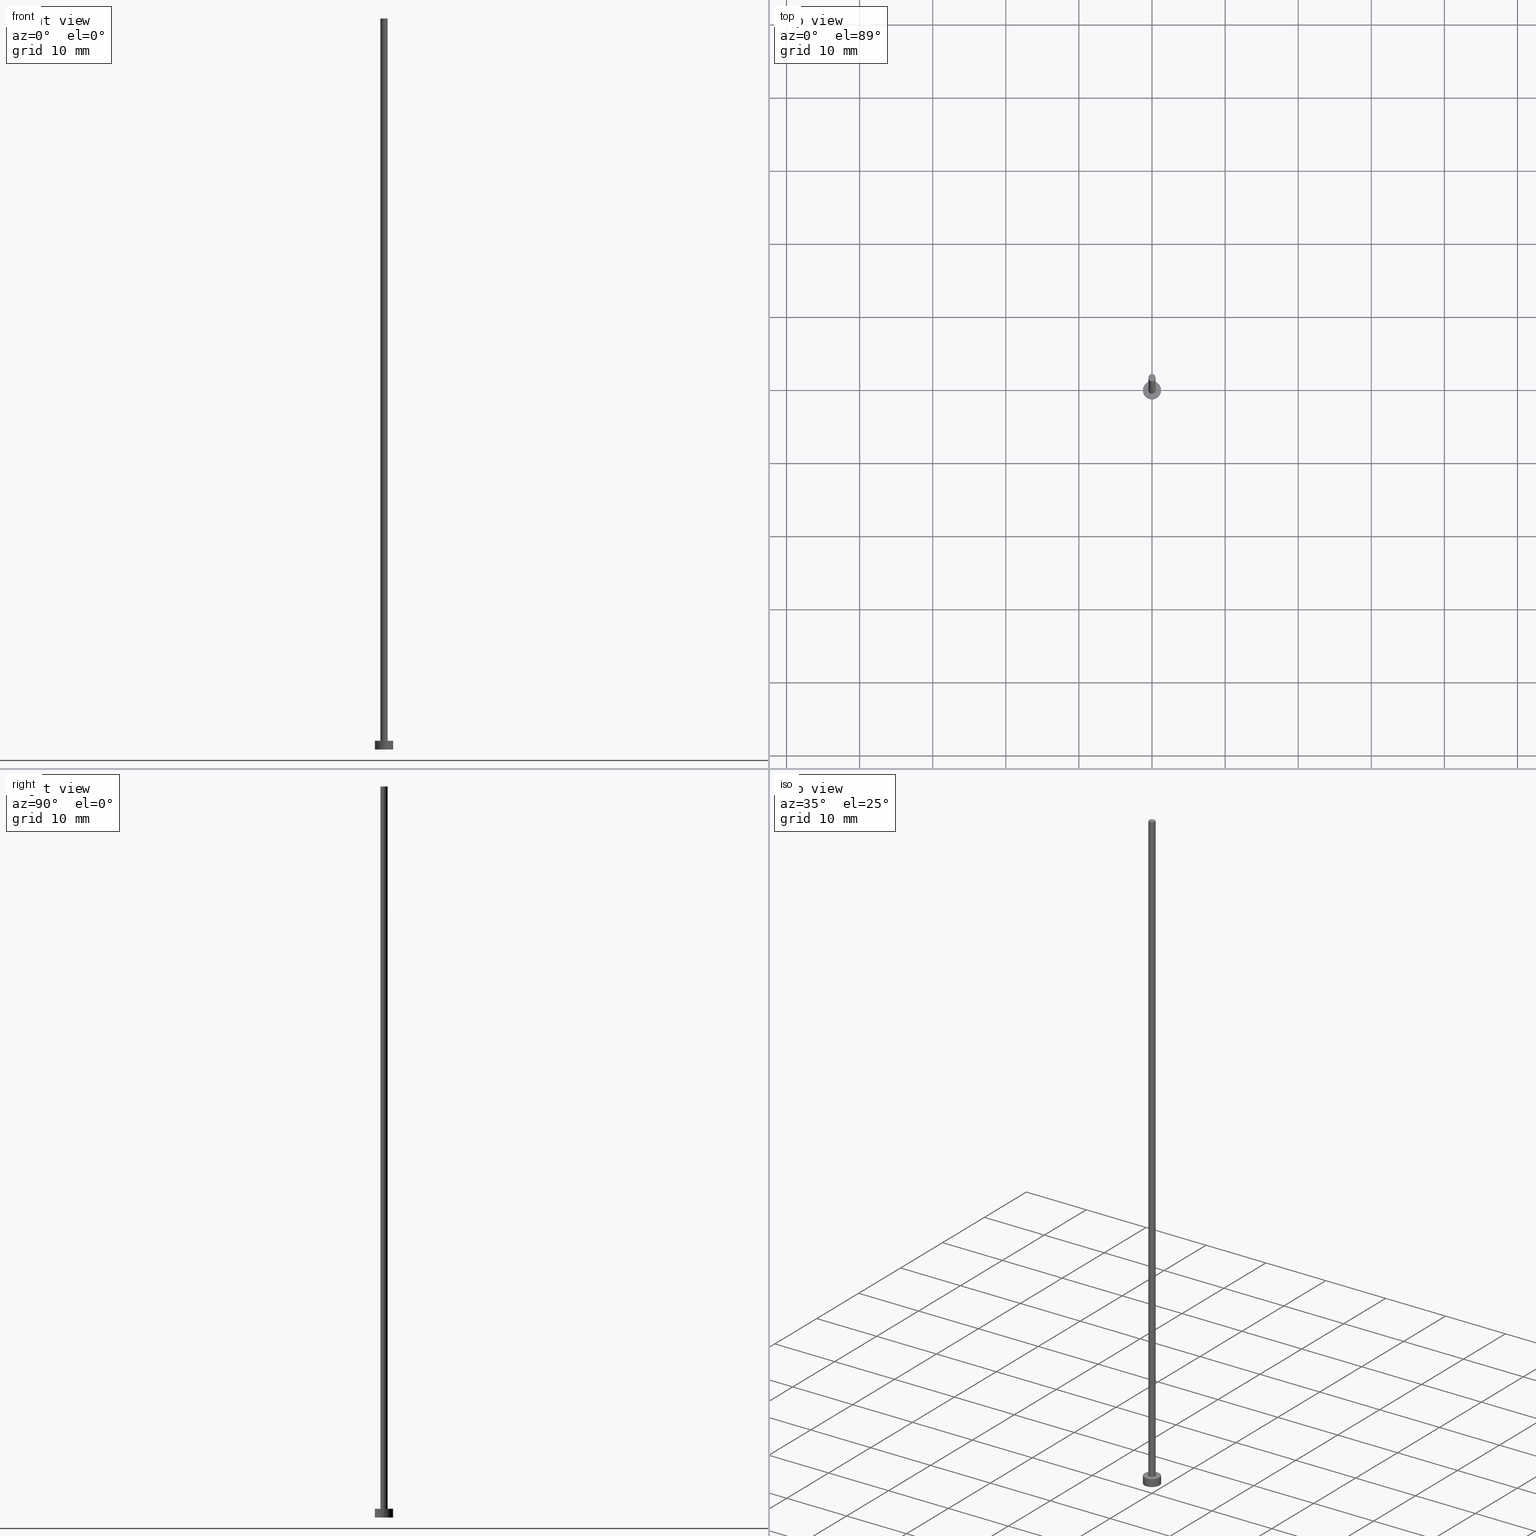
[diagram: canonical four-view strip — front | top / right | iso, engineering-drawing reading convention]
A machine part, canonical four-view strip (front | top / right | iso — engineering-drawing reading convention). The complete STEP part file that produces these views, byte-faithful:
ISO-10303-21;
HEADER;
FILE_DESCRIPTION (( 'STEP AP203' ),
    '1' );
FILE_NAME ('96ec.STEP',
    '2024-03-19T14:13:06',
    ( '' ),
    ( '' ),
    'SwSTEP 2.0',
    'SolidWorks 2019',
    '' );
FILE_SCHEMA (( 'CONFIG_CONTROL_DESIGN' ));
ENDSEC;

DATA;
#1 = VERTEX_POINT ( 'NONE', #132 ) ;
#2 = ADVANCED_FACE ( 'NONE', ( #233 ), #166, .F. ) ;
#3 = CARTESIAN_POINT ( 'NONE',  ( 0.000000000000000000, 0.000000000000000000, 100.0000000000000000 ) ) ;
#4 = ORIENTED_EDGE ( 'NONE', *, *, #98, .T. ) ;
#5 = ORIENTED_EDGE ( 'NONE', *, *, #40, .F. ) ;
#6 = APPROVAL_PERSON_ORGANIZATION ( #203, #76, #227 ) ;
#7 = COORDINATED_UNIVERSAL_TIME_OFFSET ( 1, 0, .AHEAD. ) ;
#8 = AXIS2_PLACEMENT_3D ( 'NONE', #77, #210, #229 ) ;
#9 = EDGE_LOOP ( 'NONE', ( #49, #85 ) ) ;
#10 = EDGE_CURVE ( 'NONE', #1, #31, #140, .T. ) ;
#11 = VERTEX_POINT ( 'NONE', #109 ) ;
#12 = ORIENTED_EDGE ( 'NONE', *, *, #34, .T. ) ;
#13 = DATE_AND_TIME ( #204, #208 ) ;
#14 = UNCERTAINTY_MEASURE_WITH_UNIT (LENGTH_MEASURE( 1.000000000000000082E-05 ), #192, 'distance_accuracy_value', 'NONE');
#15 = CC_DESIGN_APPROVAL ( #118, ( #218 ) ) ;
#16 = EDGE_CURVE ( 'NONE', #11, #26, #21, .T. ) ;
#17 = CIRCLE ( 'NONE', #113, 0.5000000000000000000 ) ;
#18 = CARTESIAN_POINT ( 'NONE',  ( 0.000000000000000000, 0.000000000000000000, 100.0000000000000000 ) ) ;
#19 = APPLICATION_CONTEXT ( 'configuration controlled 3d designs of mechanical parts and assemblies' ) ;
#20 = CARTESIAN_POINT ( 'NONE',  ( 0.000000000000000000, 0.000000000000000000, 0.000000000000000000 ) ) ;
#21 = LINE ( 'NONE', #175, #135 ) ;
#22 = CIRCLE ( 'NONE', #254, 1.250000000000000000 ) ;
#23 = CARTESIAN_POINT ( 'NONE',  ( -1.250000000000000000, 0.000000000000000000, 1.199999999999999956 ) ) ;
#24 = DIRECTION ( 'NONE',  ( -0.000000000000000000, -0.000000000000000000, -1.000000000000000000 ) ) ;
#25 = CARTESIAN_POINT ( 'NONE',  ( 0.000000000000000000, 0.000000000000000000, 100.0000000000000000 ) ) ;
#26 = VERTEX_POINT ( 'NONE', #81 ) ;
#27 = VECTOR ( 'NONE', #131, 1000.000000000000000 ) ;
#28 = ORIENTED_EDGE ( 'NONE', *, *, #70, .T. ) ;
#29 = CARTESIAN_POINT ( 'NONE',  ( 0.000000000000000000, 0.000000000000000000, 0.000000000000000000 ) ) ;
#30 = COORDINATED_UNIVERSAL_TIME_OFFSET ( 1, 0, .AHEAD. ) ;
#31 = VERTEX_POINT ( 'NONE', #79 ) ;
#32 = CC_DESIGN_SECURITY_CLASSIFICATION ( #218, ( #95 ) ) ;
#33 = CALENDAR_DATE ( 2024, 19, 3 ) ;
#34 = EDGE_CURVE ( 'NONE', #197, #1, #154, .T. ) ;
#35 = ORIENTED_EDGE ( 'NONE', *, *, #221, .T. ) ;
#36 = LINE ( 'NONE', #61, #27 ) ;
#37 = LOCAL_TIME ( 15, 13, 6.000000000000000000, #142 ) ;
#38 = CALENDAR_DATE ( 2024, 19, 3 ) ;
#39 = ORIENTED_EDGE ( 'NONE', *, *, #90, .T. ) ;
#40 = EDGE_CURVE ( 'NONE', #143, #31, #36, .T. ) ;
#41 = CARTESIAN_POINT ( 'NONE',  ( 0.000000000000000000, 0.000000000000000000, 1.199999999999999956 ) ) ;
#42 = DIRECTION ( 'NONE',  ( 1.000000000000000000, 0.000000000000000000, -0.000000000000000000 ) ) ;
#43 = FACE_OUTER_BOUND ( 'NONE', #122, .T. ) ;
#44 = APPLICATION_PROTOCOL_DEFINITION ( 'international standard', 'config_control_design', 1994, #245 ) ;
#45 = DIRECTION ( 'NONE',  ( -1.000000000000000000, 0.000000000000000000, 0.000000000000000000 ) ) ;
#46 = CYLINDRICAL_SURFACE ( 'NONE', #117, 0.5000000000000000000 ) ;
#47 = AXIS2_PLACEMENT_3D ( 'NONE', #25, #219, #215 ) ;
#48 = DIRECTION ( 'NONE',  ( -1.000000000000000000, 0.000000000000000000, 0.000000000000000000 ) ) ;
#49 = ORIENTED_EDGE ( 'NONE', *, *, #59, .T. ) ;
#50 = DATE_TIME_ROLE ( 'creation_date' ) ;
#51 = PRODUCT_RELATED_PRODUCT_CATEGORY ( 'detail', '', ( #255 ) ) ;
#52 = COORDINATED_UNIVERSAL_TIME_OFFSET ( 1, 0, .AHEAD. ) ;
#53 = ORIENTED_EDGE ( 'NONE', *, *, #34, .F. ) ;
#54 = PERSON_AND_ORGANIZATION ( #75, #108 ) ;
#55 = CARTESIAN_POINT ( 'NONE',  ( -1.250000000000000000, 0.000000000000000000, 1.199999999999999956 ) ) ;
#56 = CYLINDRICAL_SURFACE ( 'NONE', #151, 1.250000000000000000 ) ;
#57 = PERSON_AND_ORGANIZATION_ROLE ( 'creator' ) ;
#58 = LOCAL_TIME ( 15, 13, 6.000000000000000000, #7 ) ;
#59 = EDGE_CURVE ( 'NONE', #197, #143, #69, .T. ) ;
#60 = DIRECTION ( 'NONE',  ( 1.000000000000000000, 0.000000000000000000, 0.000000000000000000 ) ) ;
#61 = CARTESIAN_POINT ( 'NONE',  ( 1.250000000000000000, 1.530808498934191571E-16, 1.199999999999999956 ) ) ;
#62 = ADVANCED_FACE ( 'NONE', ( #152 ), #56, .T. ) ;
#63 = DIRECTION ( 'NONE',  ( -1.000000000000000000, 0.000000000000000000, 0.000000000000000000 ) ) ;
#64 = DIRECTION ( 'NONE',  ( 0.000000000000000000, 0.000000000000000000, 1.000000000000000000 ) ) ;
#65 = DIRECTION ( 'NONE',  ( 1.000000000000000000, 0.000000000000000000, -0.000000000000000000 ) ) ;
#66 =( NAMED_UNIT ( * ) SI_UNIT ( $, .STERADIAN. ) SOLID_ANGLE_UNIT ( ) );
#67 = LINE ( 'NONE', #156, #212 ) ;
#68 = ORIENTED_EDGE ( 'NONE', *, *, #221, .F. ) ;
#69 = CIRCLE ( 'NONE', #220, 1.250000000000000000 ) ;
#70 = EDGE_CURVE ( 'NONE', #73, #26, #196, .T. ) ;
#71 = EDGE_LOOP ( 'NONE', ( #216, #251 ) ) ;
#72 = APPROVAL_STATUS ( 'not_yet_approved' ) ;
#73 = VERTEX_POINT ( 'NONE', #190 ) ;
#74 = APPROVAL_STATUS ( 'not_yet_approved' ) ;
#75 = PERSON ( 'NEUR�EN�', 'NEUR�EN�', 'NEUR�EN�', ('NEUR�EN�'), ('NEUR�EN�'), ('NEUR�EN�') ) ;
#76 = APPROVAL ( #74, 'NEUR�EN�' ) ;
#77 = CARTESIAN_POINT ( 'NONE',  ( 0.000000000000000000, 0.000000000000000000, 1.199999999999999956 ) ) ;
#78 = DESIGN_CONTEXT ( 'detailed design', #19, 'design' ) ;
#79 = CARTESIAN_POINT ( 'NONE',  ( 1.250000000000000000, 1.530808498934191571E-16, 0.000000000000000000 ) ) ;
#80 = CARTESIAN_POINT ( 'NONE',  ( 0.000000000000000000, 0.000000000000000000, 0.000000000000000000 ) ) ;
#81 = CARTESIAN_POINT ( 'NONE',  ( 0.5000000000000000000, 6.123233995736766036E-17, 1.199999999999999956 ) ) ;
#82 = DIRECTION ( 'NONE',  ( 0.000000000000000000, 0.000000000000000000, 1.000000000000000000 ) ) ;
#83 = FACE_OUTER_BOUND ( 'NONE', #105, .T. ) ;
#84 = PLANE ( 'NONE',  #189 ) ;
#85 = ORIENTED_EDGE ( 'NONE', *, *, #133, .T. ) ;
#86 = PERSON_AND_ORGANIZATION ( #75, #108 ) ;
#87 = CC_DESIGN_PERSON_AND_ORGANIZATION_ASSIGNMENT ( #86, #234, ( #255 ) ) ;
#88 = DATE_AND_TIME ( #146, #58 ) ;
#89 = ORIENTED_EDGE ( 'NONE', *, *, #133, .F. ) ;
#90 = EDGE_CURVE ( 'NONE', #145, #11, #104, .T. ) ;
#91 = PERSON_AND_ORGANIZATION ( #75, #108 ) ;
#92 = PERSON_AND_ORGANIZATION_ROLE ( 'design_supplier' ) ;
#93 = CC_DESIGN_DATE_AND_TIME_ASSIGNMENT ( #88, #161, ( #218 ) ) ;
#94 = CARTESIAN_POINT ( 'NONE',  ( 0.000000000000000000, 0.000000000000000000, 1.199999999999999956 ) ) ;
#95 = PRODUCT_DEFINITION_FORMATION_WITH_SPECIFIED_SOURCE ( 'LIBOVOLN�', '', #255, .NOT_KNOWN. ) ;
#96 = DIRECTION ( 'NONE',  ( 0.000000000000000000, 0.000000000000000000, 1.000000000000000000 ) ) ;
#97 = DIRECTION ( 'NONE',  ( -0.000000000000000000, -0.000000000000000000, -1.000000000000000000 ) ) ;
#98 = EDGE_CURVE ( 'NONE', #26, #73, #17, .T. ) ;
#99 = PRODUCT_DEFINITION_SHAPE ( 'NONE', 'NONE',  #176 ) ;
#100 = DIRECTION ( 'NONE',  ( 0.000000000000000000, 0.000000000000000000, 1.000000000000000000 ) ) ;
#101 = CARTESIAN_POINT ( 'NONE',  ( 0.000000000000000000, 0.000000000000000000, 0.000000000000000000 ) ) ;
#102 = ORIENTED_EDGE ( 'NONE', *, *, #10, .T. ) ;
#103 = PERSON_AND_ORGANIZATION_ROLE ( 'creator' ) ;
#104 = CIRCLE ( 'NONE', #178, 0.5000000000000000000 ) ;
#105 = EDGE_LOOP ( 'NONE', ( #39, #35 ) ) ;
#106 = DIRECTION ( 'NONE',  ( 1.000000000000000000, 0.000000000000000000, 0.000000000000000000 ) ) ;
#107 = DATE_AND_TIME ( #38, #150 ) ;
#108 = ORGANIZATION ( 'NEUR�EN�', 'NEUR�EN�', '' ) ;
#109 = CARTESIAN_POINT ( 'NONE',  ( 0.5000000000000000000, 6.123233995736766036E-17, 100.0000000000000000 ) ) ;
#110 = ADVANCED_BREP_SHAPE_REPRESENTATION ( '96ec', ( #202, #252 ), #217 ) ;
#111 = AXIS2_PLACEMENT_3D ( 'NONE', #157, #136, #63 ) ;
#112 = DIRECTION ( 'NONE',  ( -0.000000000000000000, -0.000000000000000000, -1.000000000000000000 ) ) ;
#113 = AXIS2_PLACEMENT_3D ( 'NONE', #41, #206, #187 ) ;
#114 = AXIS2_PLACEMENT_3D ( 'NONE', #239, #24, #45 ) ;
#115 = DIRECTION ( 'NONE',  ( -0.000000000000000000, -0.000000000000000000, -1.000000000000000000 ) ) ;
#116 = CARTESIAN_POINT ( 'NONE',  ( 1.250000000000000000, 1.530808498934191571E-16, 1.199999999999999956 ) ) ;
#117 = AXIS2_PLACEMENT_3D ( 'NONE', #3, #97, #48 ) ;
#118 = APPROVAL ( #72, 'NEUR�EN�' ) ;
#119 = FACE_OUTER_BOUND ( 'NONE', #9, .T. ) ;
#120 = EDGE_LOOP ( 'NONE', ( #5, #201, #12, #102 ) ) ;
#121 = APPROVAL_ROLE ( '' ) ;
#122 = EDGE_LOOP ( 'NONE', ( #89, #199, #183, #53 ) ) ;
#123 = APPROVAL_DATE_TIME ( #207, #118 ) ;
#124 = ORIENTED_EDGE ( 'NONE', *, *, #98, .F. ) ;
#125 = CARTESIAN_POINT ( 'NONE',  ( 0.000000000000000000, 0.000000000000000000, 1.199999999999999956 ) ) ;
#126 = PERSON_AND_ORGANIZATION ( #75, #108 ) ;
#127 = DIRECTION ( 'NONE',  ( 0.000000000000000000, 0.000000000000000000, 1.000000000000000000 ) ) ;
#128 = CC_DESIGN_DATE_AND_TIME_ASSIGNMENT ( #13, #50, ( #176 ) ) ;
#129 = CC_DESIGN_PERSON_AND_ORGANIZATION_ASSIGNMENT ( #126, #57, ( #176 ) ) ;
#130 = CARTESIAN_POINT ( 'NONE',  ( 0.000000000000000000, 0.000000000000000000, 1.199999999999999956 ) ) ;
#131 = DIRECTION ( 'NONE',  ( -0.000000000000000000, -0.000000000000000000, -1.000000000000000000 ) ) ;
#132 = CARTESIAN_POINT ( 'NONE',  ( -1.250000000000000000, 0.000000000000000000, 0.000000000000000000 ) ) ;
#133 = EDGE_CURVE ( 'NONE', #143, #197, #249, .T. ) ;
#134 = CARTESIAN_POINT ( 'NONE',  ( 0.000000000000000000, 0.000000000000000000, 1.199999999999999956 ) ) ;
#135 = VECTOR ( 'NONE', #171, 1000.000000000000000 ) ;
#136 = DIRECTION ( 'NONE',  ( -0.000000000000000000, -0.000000000000000000, -1.000000000000000000 ) ) ;
#137 = ORIENTED_EDGE ( 'NONE', *, *, #214, .T. ) ;
#138 = APPROVAL_PERSON_ORGANIZATION ( #54, #174, #121 ) ;
#139 = FACE_BOUND ( 'NONE', #243, .T. ) ;
#140 = CIRCLE ( 'NONE', #173, 1.250000000000000000 ) ;
#141 = EDGE_LOOP ( 'NONE', ( #68, #160, #4, #222 ) ) ;
#142 = COORDINATED_UNIVERSAL_TIME_OFFSET ( 1, 0, .AHEAD. ) ;
#143 = VERTEX_POINT ( 'NONE', #116 ) ;
#144 = APPROVAL_ROLE ( '' ) ;
#145 = VERTEX_POINT ( 'NONE', #198 ) ;
#146 = CALENDAR_DATE ( 2024, 19, 3 ) ;
#147 = EDGE_LOOP ( 'NONE', ( #179, #228, #137, #28 ) ) ;
#148 = AXIS2_PLACEMENT_3D ( 'NONE', #94, #170, #250 ) ;
#149 = PERSON_AND_ORGANIZATION ( #75, #108 ) ;
#150 = LOCAL_TIME ( 15, 13, 6.000000000000000000, #30 ) ;
#151 = AXIS2_PLACEMENT_3D ( 'NONE', #130, #185, #246 ) ;
#152 = FACE_OUTER_BOUND ( 'NONE', #120, .T. ) ;
#153 = DIRECTION ( 'NONE',  ( 1.000000000000000000, 0.000000000000000000, 0.000000000000000000 ) ) ;
#154 = LINE ( 'NONE', #55, #230 ) ;
#155 = CC_DESIGN_PERSON_AND_ORGANIZATION_ASSIGNMENT ( #91, #241, ( #218 ) ) ;
#156 = CARTESIAN_POINT ( 'NONE',  ( -0.5000000000000000000, 0.000000000000000000, 100.0000000000000000 ) ) ;
#157 = CARTESIAN_POINT ( 'NONE',  ( 0.000000000000000000, 0.000000000000000000, 100.0000000000000000 ) ) ;
#158 = FACE_OUTER_BOUND ( 'NONE', #147, .T. ) ;
#159 = MECHANICAL_CONTEXT ( 'NONE', #245, 'mechanical' ) ;
#160 = ORIENTED_EDGE ( 'NONE', *, *, #16, .T. ) ;
#161 = DATE_TIME_ROLE ( 'classification_date' ) ;
#162 = PERSON_AND_ORGANIZATION ( #75, #108 ) ;
#163 = APPLICATION_PROTOCOL_DEFINITION ( 'international standard', 'config_control_design', 1994, #19 ) ;
#164 = ORIENTED_EDGE ( 'NONE', *, *, #70, .F. ) ;
#165 = AXIS2_PLACEMENT_3D ( 'NONE', #80, #96, #42 ) ;
#166 = PLANE ( 'NONE',  #165 ) ;
#167 = ADVANCED_FACE ( 'NONE', ( #83 ), #253, .T. ) ;
#168 = SECURITY_CLASSIFICATION_LEVEL ( 'unclassified' ) ;
#169 = LOCAL_TIME ( 15, 13, 6.000000000000000000, #52 ) ;
#170 = DIRECTION ( 'NONE',  ( 0.000000000000000000, 0.000000000000000000, 1.000000000000000000 ) ) ;
#171 = DIRECTION ( 'NONE',  ( -0.000000000000000000, -0.000000000000000000, -1.000000000000000000 ) ) ;
#172 = CC_DESIGN_APPROVAL ( #174, ( #176 ) ) ;
#173 = AXIS2_PLACEMENT_3D ( 'NONE', #20, #191, #60 ) ;
#174 = APPROVAL ( #224, 'NEUR�EN�' ) ;
#175 = CARTESIAN_POINT ( 'NONE',  ( 0.5000000000000000000, 6.123233995736766036E-17, 100.0000000000000000 ) ) ;
#176 = PRODUCT_DEFINITION ( 'NEZN�M�', '', #95, #78 ) ;
#177 = DIRECTION ( 'NONE',  ( 1.000000000000000000, 0.000000000000000000, 0.000000000000000000 ) ) ;
#178 = AXIS2_PLACEMENT_3D ( 'NONE', #18, #127, #153 ) ;
#179 = ORIENTED_EDGE ( 'NONE', *, *, #16, .F. ) ;
#180 = CARTESIAN_POINT ( 'NONE',  ( 0.000000000000000000, 0.000000000000000000, 100.0000000000000000 ) ) ;
#181 = CC_DESIGN_APPROVAL ( #76, ( #95 ) ) ;
#182 = PERSON_AND_ORGANIZATION ( #75, #108 ) ;
#183 = ORIENTED_EDGE ( 'NONE', *, *, #240, .T. ) ;
#184 = APPROVAL_DATE_TIME ( #223, #174 ) ;
#185 = DIRECTION ( 'NONE',  ( -0.000000000000000000, -0.000000000000000000, -1.000000000000000000 ) ) ;
#186 = APPROVAL_DATE_TIME ( #107, #76 ) ;
#187 = DIRECTION ( 'NONE',  ( 1.000000000000000000, 0.000000000000000000, 0.000000000000000000 ) ) ;
#188 = CALENDAR_DATE ( 2024, 19, 3 ) ;
#189 = AXIS2_PLACEMENT_3D ( 'NONE', #134, #237, #194 ) ;
#190 = CARTESIAN_POINT ( 'NONE',  ( -0.5000000000000000000, 0.000000000000000000, 1.199999999999999956 ) ) ;
#191 = DIRECTION ( 'NONE',  ( 0.000000000000000000, 0.000000000000000000, 1.000000000000000000 ) ) ;
#192 =( LENGTH_UNIT ( ) NAMED_UNIT ( * ) SI_UNIT ( .MILLI., .METRE. ) );
#193 = CYLINDRICAL_SURFACE ( 'NONE', #111, 0.5000000000000000000 ) ;
#194 = DIRECTION ( 'NONE',  ( 1.000000000000000000, 0.000000000000000000, -0.000000000000000000 ) ) ;
#195 = ADVANCED_FACE ( 'NONE', ( #158 ), #193, .T. ) ;
#196 = CIRCLE ( 'NONE', #8, 0.5000000000000000000 ) ;
#197 = VERTEX_POINT ( 'NONE', #23 ) ;
#198 = CARTESIAN_POINT ( 'NONE',  ( -0.5000000000000000000, 0.000000000000000000, 100.0000000000000000 ) ) ;
#199 = ORIENTED_EDGE ( 'NONE', *, *, #40, .T. ) ;
#200 = COORDINATED_UNIVERSAL_TIME_OFFSET ( 1, 0, .AHEAD. ) ;
#201 = ORIENTED_EDGE ( 'NONE', *, *, #59, .F. ) ;
#202 = MANIFOLD_SOLID_BREP ( 'P�idat vysunut�m3', #248 ) ;
#203 = PERSON_AND_ORGANIZATION ( #75, #108 ) ;
#204 = CALENDAR_DATE ( 2024, 19, 3 ) ;
#205 = DIRECTION ( 'NONE',  ( 0.000000000000000000, 0.000000000000000000, 1.000000000000000000 ) ) ;
#206 = DIRECTION ( 'NONE',  ( 0.000000000000000000, 0.000000000000000000, 1.000000000000000000 ) ) ;
#207 = DATE_AND_TIME ( #33, #169 ) ;
#208 = LOCAL_TIME ( 15, 13, 6.000000000000000000, #200 ) ;
#209 = ADVANCED_FACE ( 'NONE', ( #139, #119 ), #84, .T. ) ;
#210 = DIRECTION ( 'NONE',  ( 0.000000000000000000, 0.000000000000000000, 1.000000000000000000 ) ) ;
#211 = FACE_OUTER_BOUND ( 'NONE', #141, .T. ) ;
#212 = VECTOR ( 'NONE', #115, 1000.000000000000000 ) ;
#213 = DIRECTION ( 'NONE',  ( 1.000000000000000000, 0.000000000000000000, 0.000000000000000000 ) ) ;
#214 = EDGE_CURVE ( 'NONE', #145, #73, #67, .T. ) ;
#215 = DIRECTION ( 'NONE',  ( 1.000000000000000000, 0.000000000000000000, 0.000000000000000000 ) ) ;
#216 = ORIENTED_EDGE ( 'NONE', *, *, #10, .F. ) ;
#217 =( GEOMETRIC_REPRESENTATION_CONTEXT ( 3 ) GLOBAL_UNCERTAINTY_ASSIGNED_CONTEXT ( ( #14 ) ) GLOBAL_UNIT_ASSIGNED_CONTEXT ( ( #192, #238, #66 ) ) REPRESENTATION_CONTEXT ( 'NONE', 'WORKASPACE' ) );
#218 = SECURITY_CLASSIFICATION ( '', '', #168 ) ;
#219 = DIRECTION ( 'NONE',  ( 0.000000000000000000, 0.000000000000000000, 1.000000000000000000 ) ) ;
#220 = AXIS2_PLACEMENT_3D ( 'NONE', #125, #205, #106 ) ;
#221 = EDGE_CURVE ( 'NONE', #11, #145, #225, .T. ) ;
#222 = ORIENTED_EDGE ( 'NONE', *, *, #214, .F. ) ;
#223 = DATE_AND_TIME ( #188, #37 ) ;
#224 = APPROVAL_STATUS ( 'not_yet_approved' ) ;
#225 = CIRCLE ( 'NONE', #47, 0.5000000000000000000 ) ;
#226 = ADVANCED_FACE ( 'NONE', ( #43 ), #235, .T. ) ;
#227 = APPROVAL_ROLE ( '' ) ;
#228 = ORIENTED_EDGE ( 'NONE', *, *, #90, .F. ) ;
#229 = DIRECTION ( 'NONE',  ( 1.000000000000000000, 0.000000000000000000, 0.000000000000000000 ) ) ;
#230 = VECTOR ( 'NONE', #112, 1000.000000000000000 ) ;
#231 = CC_DESIGN_PERSON_AND_ORGANIZATION_ASSIGNMENT ( #149, #103, ( #95 ) ) ;
#232 = AXIS2_PLACEMENT_3D ( 'NONE', #180, #82, #65 ) ;
#233 = FACE_OUTER_BOUND ( 'NONE', #71, .T. ) ;
#234 = PERSON_AND_ORGANIZATION_ROLE ( 'design_owner' ) ;
#235 = CYLINDRICAL_SURFACE ( 'NONE', #114, 1.250000000000000000 ) ;
#236 = ADVANCED_FACE ( 'NONE', ( #211 ), #46, .T. ) ;
#237 = DIRECTION ( 'NONE',  ( 0.000000000000000000, 0.000000000000000000, 1.000000000000000000 ) ) ;
#238 =( NAMED_UNIT ( * ) PLANE_ANGLE_UNIT ( ) SI_UNIT ( $, .RADIAN. ) );
#239 = CARTESIAN_POINT ( 'NONE',  ( 0.000000000000000000, 0.000000000000000000, 1.199999999999999956 ) ) ;
#240 = EDGE_CURVE ( 'NONE', #31, #1, #22, .T. ) ;
#241 = PERSON_AND_ORGANIZATION_ROLE ( 'classification_officer' ) ;
#242 = SHAPE_DEFINITION_REPRESENTATION ( #99, #110 ) ;
#243 = EDGE_LOOP ( 'NONE', ( #164, #124 ) ) ;
#244 = APPROVAL_PERSON_ORGANIZATION ( #162, #118, #144 ) ;
#245 = APPLICATION_CONTEXT ( 'configuration controlled 3d designs of mechanical parts and assemblies' ) ;
#246 = DIRECTION ( 'NONE',  ( -1.000000000000000000, 0.000000000000000000, 0.000000000000000000 ) ) ;
#247 = CC_DESIGN_PERSON_AND_ORGANIZATION_ASSIGNMENT ( #182, #92, ( #95 ) ) ;
#248 = CLOSED_SHELL ( 'NONE', ( #236, #226, #62, #209, #2, #195, #167 ) ) ;
#249 = CIRCLE ( 'NONE', #148, 1.250000000000000000 ) ;
#250 = DIRECTION ( 'NONE',  ( 1.000000000000000000, 0.000000000000000000, 0.000000000000000000 ) ) ;
#251 = ORIENTED_EDGE ( 'NONE', *, *, #240, .F. ) ;
#252 = AXIS2_PLACEMENT_3D ( 'NONE', #101, #64, #213 ) ;
#253 = PLANE ( 'NONE',  #232 ) ;
#254 = AXIS2_PLACEMENT_3D ( 'NONE', #29, #100, #177 ) ;
#255 = PRODUCT ( '96ec', '96ec', '', ( #159 ) ) ;
ENDSEC;
END-ISO-10303-21;
